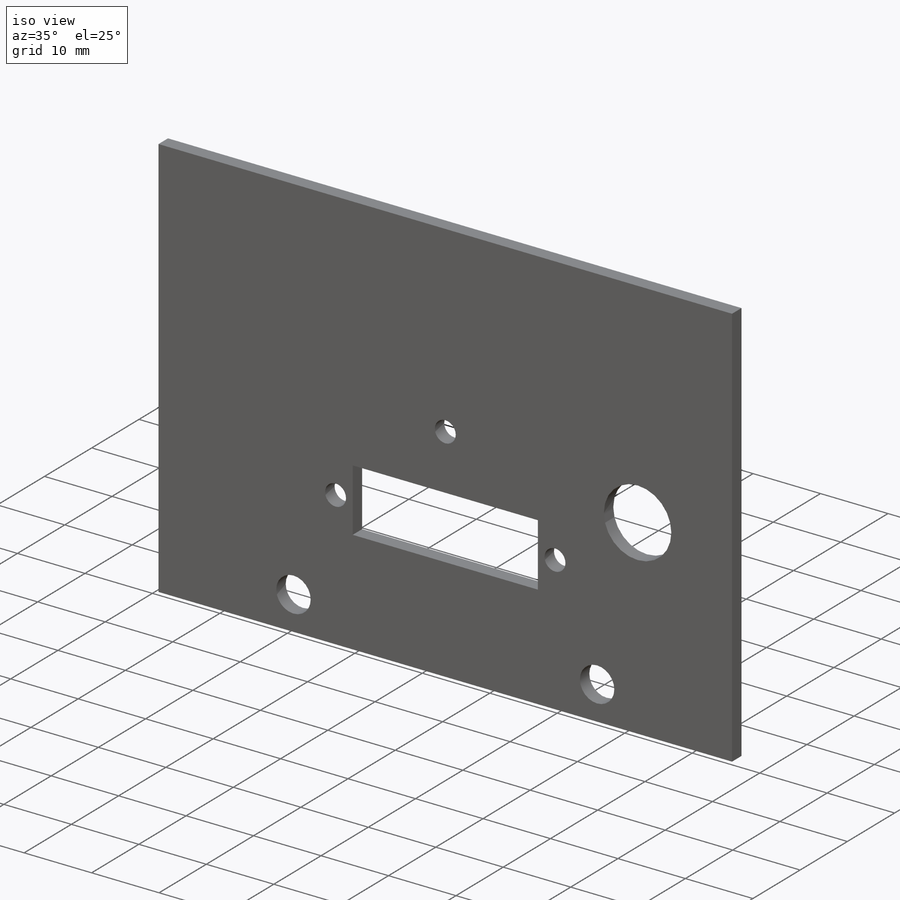
[diagram: iso view]
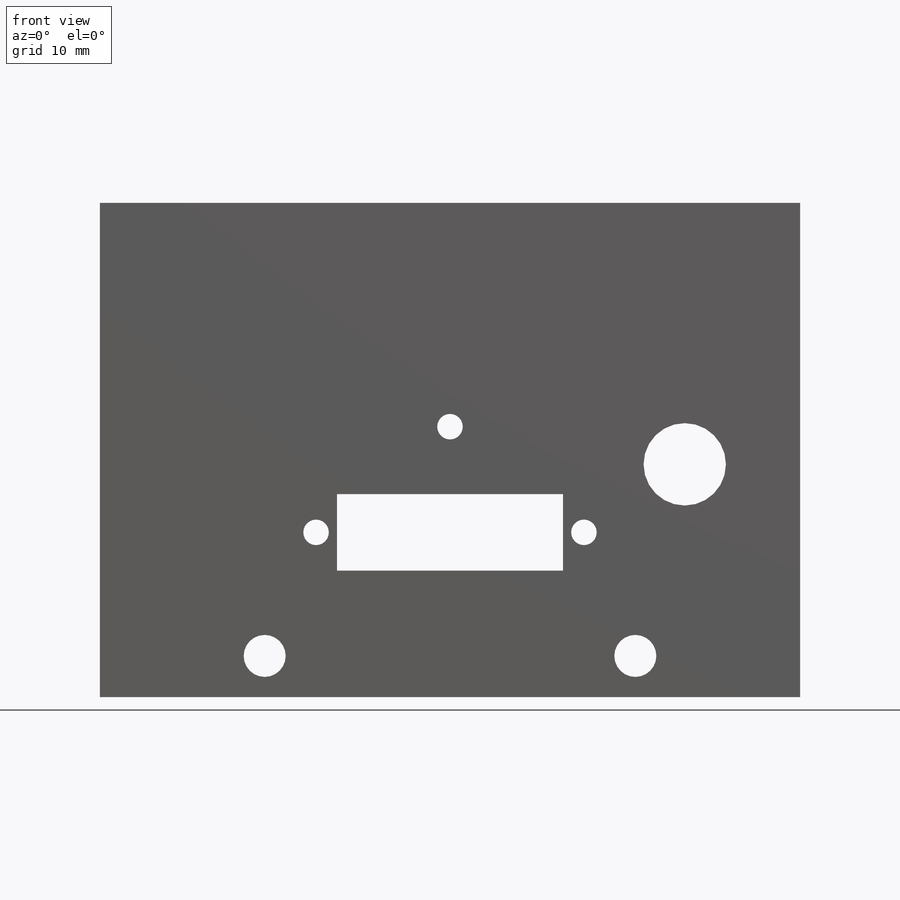
[diagram: front view]
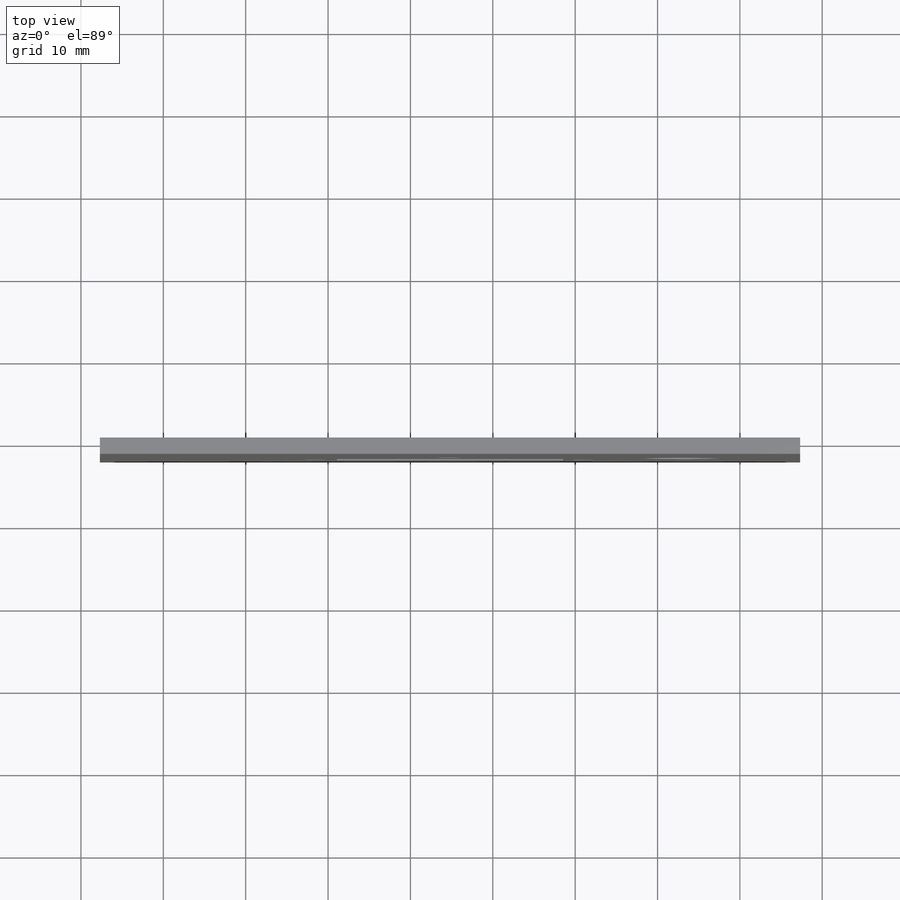
[diagram: top view]
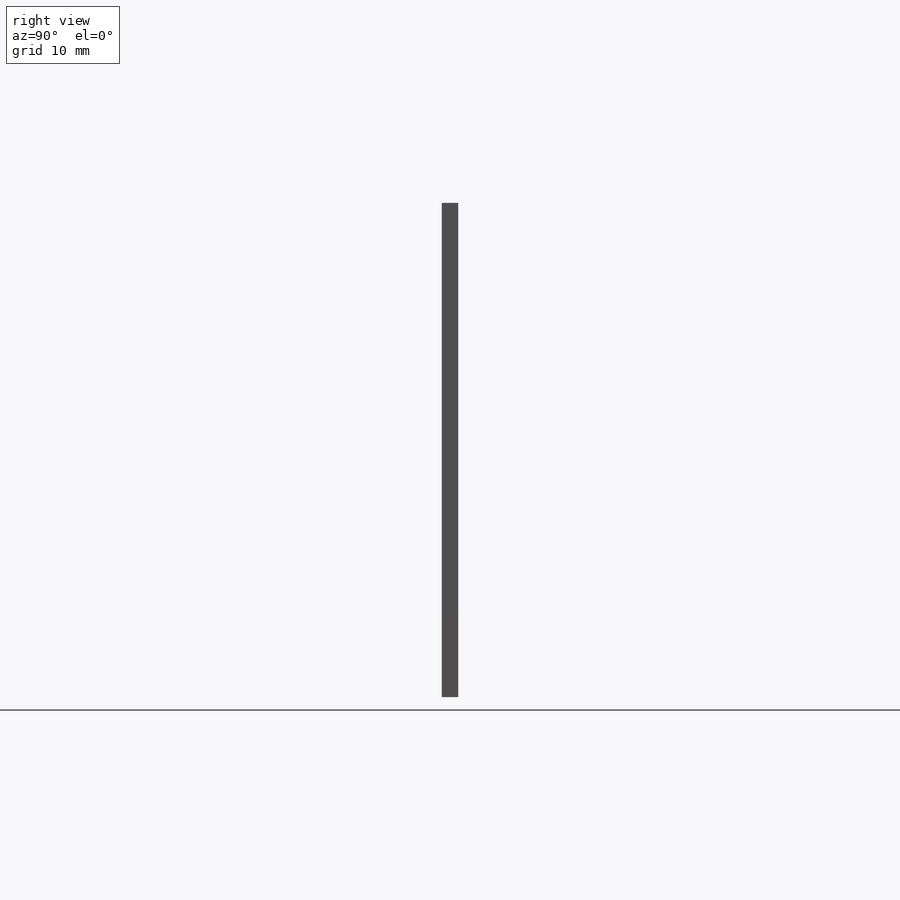
[diagram: right view]
SOLIDWORKS PART (.sldprt)
format: sldprt  version: not decoded by parser v0  size: 193,536 bytes
history: native  units: mm
features: sketch x4, cut_extrude x3, material x1, extrude x1 (+11 scaffold rows collapsed)
feature tree (20):
  scaffold x11  (default folders/planes/origin — collapsed)
  material  "Material <not specified>"
  sketch  "Sketch1"  dims[D1=85.0mm D2=60.0mm]
  extrude  "Boss-Extrude1"  Depth=2mm
  sketch  "Sketch2"  dims[c1.D3=5.1mm c1.D4=5.1mm c1.D5=5.1mm c1.D6=5.1mm c1.D1=5.0mm c1.D2=5.0mm c2.D5=20.0mm c2.D6=20.0mm]
  cut_extrude  "Cut-Extrude1"  [1 undecoded]
  sketch  "Sketch3"  dims[c1.D3=10.0mm c1.D4=10.0mm c1.D5=10.0mm c1.D6=3.1mm c1.D7=3.1mm c1.D8=3.1mm c1.D9=3.1mm c1.D10=3.1mm c1.D11=3.1mm c1.D13=3.1mm c1.D14=3.1mm c1.D19=3.1mm c1.D20=3.1mm c1.D1=76.0mm c1.D2=47.0mm c2.D3=47.0mm c3.D3=90.0deg c4.D3=47.0mm c4.D4=9.5mm c4.D5=27.51mm c4.D9=38.0mm c4.D10=32.08mm c4.D11=19.25mm c4.D12=19.25mm c4.D13=21.74mm c4.D14=54.26mm c4.D15=14.6mm c4.D16=~24.545416mm c5.D16=270.0deg c6.D16=23.9mm c6.D17=24.28mm c6.D18=51.72mm c6.D19=40.0mm c6.D20=42.5mm c6.D21=7.0mm]
  cut_extrude  "Cut-Extrude2"  [1 undecoded]
  sketch  "Sketch4"  dims[c1.D1=~6.880944mm c1.D2=~8.956149mm c1.D3=4.1mm c1.D4=4.1mm c1.D5=4.0mm c1.D6=4.0mm c2.D1=20.0mm c2.D2=20.0mm c2.D5=2.75mm c2.D6=2.75mm]
  cut_extrude  "Cut-Extrude3"  [1 undecoded]
decode coverage: 5 of 8 modeling features carry decoded parameters
note: ~ marks probable driven/reference dimensions
note: 3 parameter values undecoded
summary: no parameter record found for 3 features
note: suppression state not decoded; provenance and decode notes live in map.json
